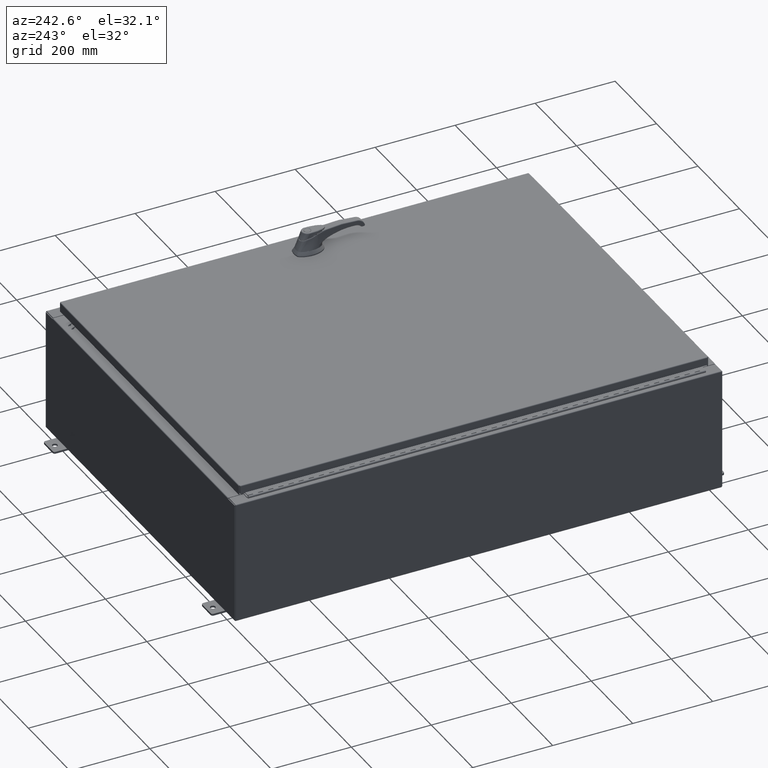
[diagram: clean part render]
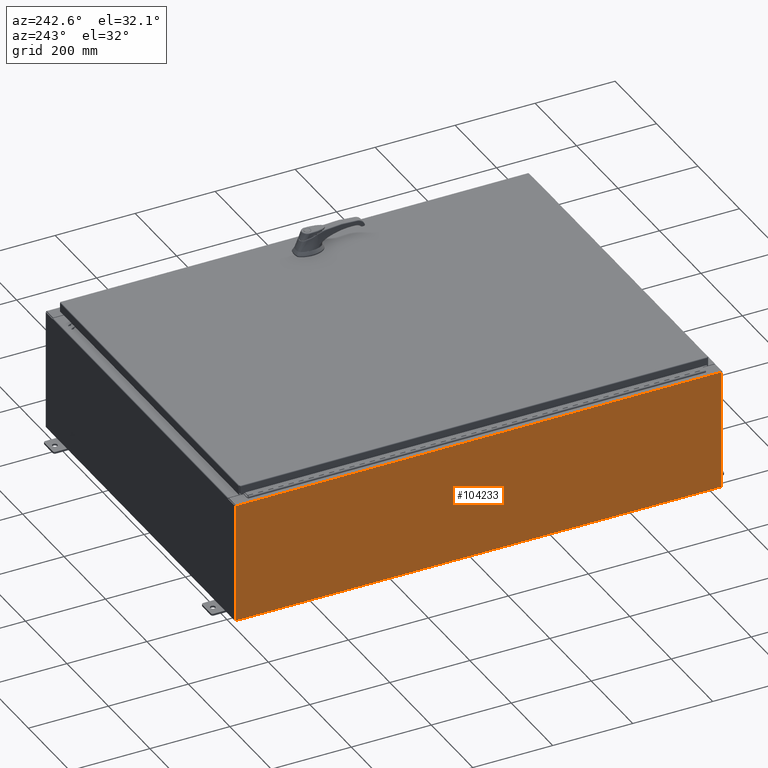
[diagram: same view with one face highlighted and labeled with its STEP entity id]
A machine part, auxiliary view. The second image highlights one B-rep face of the part: STEP entity #104233.
In plain terms, the highlighted planar face has unit normal (1, 0, 0).
Its self-contained STEP definition (entity closure, byte-faithful):
#5089 = PLANE ( 'NONE',  #47223 ) ;
#8691 = CARTESIAN_POINT ( 'NONE',  ( -18.00000000000000400, 23.92529999999998900, 0.01299999999999984700 ) ) ;
#8852 = CARTESIAN_POINT ( 'NONE',  ( -18.00000000000004600, 23.92529999999998900, 11.83760000000000200 ) ) ;
#15373 = DIRECTION ( 'NONE',  ( 3.482016343714355100E-015, 0.0000000000000000000, -1.000000000000000000 ) ) ;
#24238 = EDGE_LOOP ( 'NONE', ( #114068, #81928, #133050, #89056 ) ) ;
#25710 = CARTESIAN_POINT ( 'NONE',  ( -18.00000000000004600, -23.92529999999998900, 11.83760000000000200 ) ) ;
#26955 = EDGE_CURVE ( 'NONE', #36685, #126632, #35884, .T. ) ;
#29045 = CARTESIAN_POINT ( 'NONE',  ( -18.00000000000000400, -23.92529999999999600, -6.293710784286998800E-014 ) ) ;
#35884 = LINE ( 'NONE', #8691, #90420 ) ;
#36685 = VERTEX_POINT ( 'NONE', #65147 ) ;
#39320 = DIRECTION ( 'NONE',  ( -3.482016343714355500E-015, 0.0000000000000000000, 1.000000000000000000 ) ) ;
#42126 = EDGE_CURVE ( 'NONE', #36685, #101327, #86714, .T. ) ;
#42155 = VERTEX_POINT ( 'NONE', #8852 ) ;
#42424 = VECTOR ( 'NONE', #62694, 39.37007874015748100 ) ;
#47223 = AXIS2_PLACEMENT_3D ( 'NONE', #56138, #76750, #15373 ) ;
#47899 = LINE ( 'NONE', #25710, #75175 ) ;
#52394 = CARTESIAN_POINT ( 'NONE',  ( -18.00000000000000400, 23.92529999999998900, -6.293710784286998800E-014 ) ) ;
#56138 = CARTESIAN_POINT ( 'NONE',  ( -18.00000000000000400, 0.0000000000000000000, -6.293710784286998800E-014 ) ) ;
#62662 = VECTOR ( 'NONE', #39320, 39.37007874015748100 ) ;
#62694 = DIRECTION ( 'NONE',  ( 3.482016343714355500E-015, 0.0000000000000000000, -1.000000000000000000 ) ) ;
#65147 = CARTESIAN_POINT ( 'NONE',  ( -18.00000000000000400, -23.92529999999998600, 0.01299999999999984700 ) ) ;
#67006 = EDGE_CURVE ( 'NONE', #101327, #42155, #47899, .T. ) ;
#72492 = CARTESIAN_POINT ( 'NONE',  ( -18.00000000000004600, -23.92529999999998600, 11.83760000000000200 ) ) ;
#75175 = VECTOR ( 'NONE', #107649, 39.37007874015748100 ) ;
#76750 = DIRECTION ( 'NONE',  ( 1.000000000000000000, 0.0000000000000000000, 3.482016343714355100E-015 ) ) ;
#80375 = DIRECTION ( 'NONE',  ( -0.0000000000000000000, 1.000000000000000000, -0.0000000000000000000 ) ) ;
#81928 = ORIENTED_EDGE ( 'NONE', *, *, #127206, .T. ) ;
#86282 = FACE_OUTER_BOUND ( 'NONE', #24238, .T. ) ;
#86714 = LINE ( 'NONE', #29045, #62662 ) ;
#89056 = ORIENTED_EDGE ( 'NONE', *, *, #42126, .T. ) ;
#90420 = VECTOR ( 'NONE', #80375, 39.37007874015748100 ) ;
#100139 = LINE ( 'NONE', #52394, #42424 ) ;
#101327 = VERTEX_POINT ( 'NONE', #72492 ) ;
#104233 = ADVANCED_FACE ( 'NONE', ( #86282 ), #5089, .F. ) ;
#107649 = DIRECTION ( 'NONE',  ( 0.0000000000000000000, 1.000000000000000000, 0.0000000000000000000 ) ) ;
#114068 = ORIENTED_EDGE ( 'NONE', *, *, #67006, .T. ) ;
#117787 = CARTESIAN_POINT ( 'NONE',  ( -18.00000000000000400, 23.92529999999998900, 0.01299999999999984700 ) ) ;
#126632 = VERTEX_POINT ( 'NONE', #117787 ) ;
#127206 = EDGE_CURVE ( 'NONE', #42155, #126632, #100139, .T. ) ;
#133050 = ORIENTED_EDGE ( 'NONE', *, *, #26955, .F. ) ;